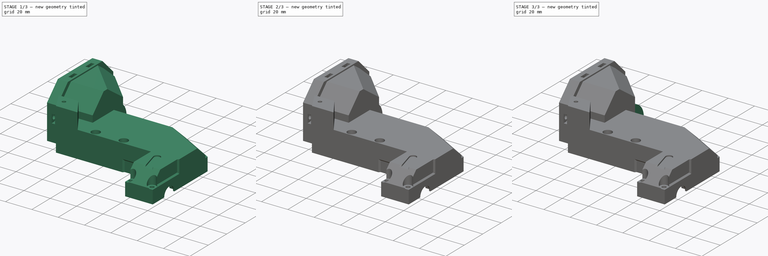
[diagram: build sequence overview — one tinted view per stage of 3, left to right]
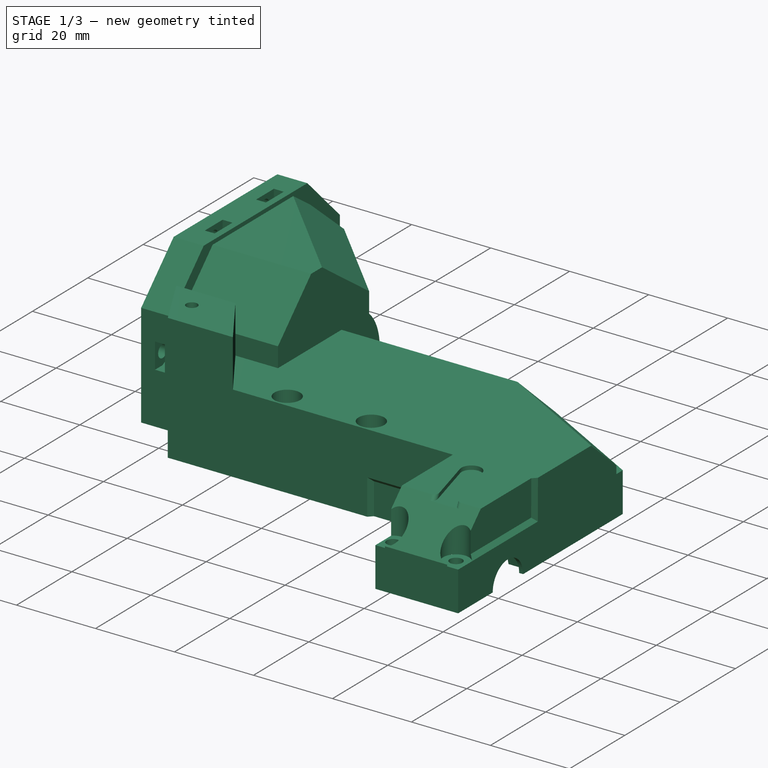
[diagram: stage 1 of 3 — iso view after this stage's code; geometry added in this stage tinted green]
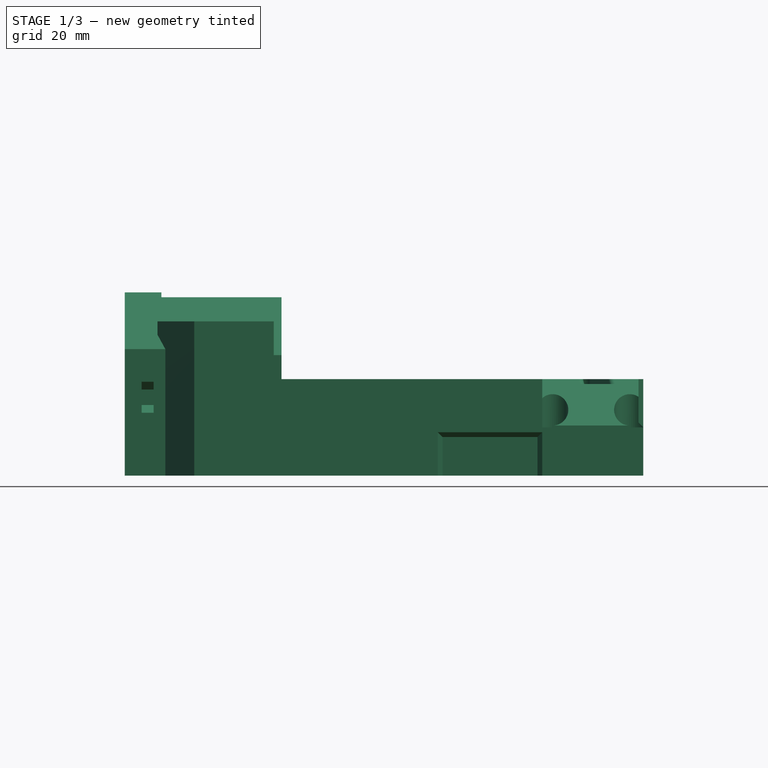
[diagram: stage 1 of 3 — front view after this stage's code; geometry added in this stage tinted green]
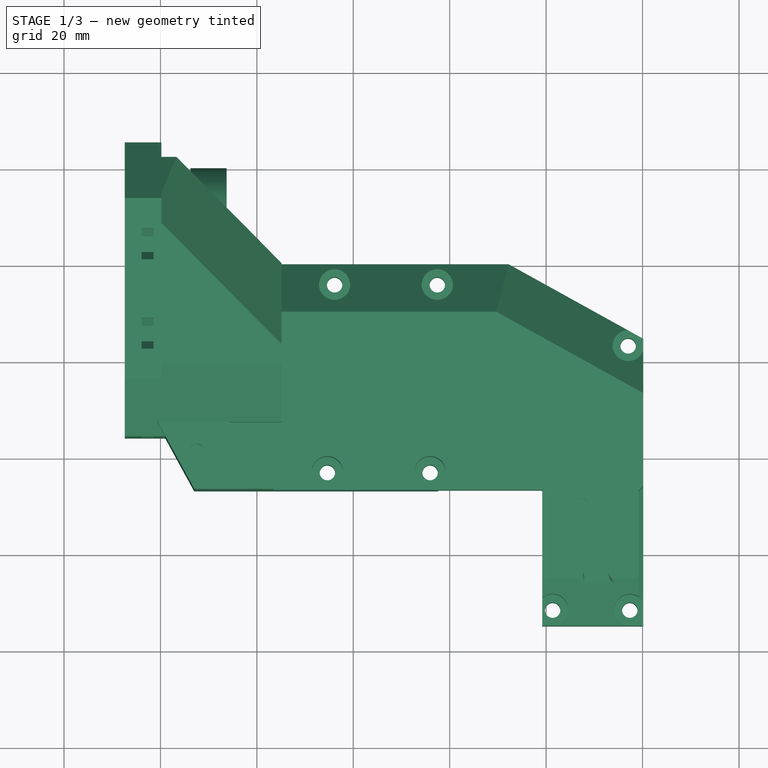
[diagram: stage 1 of 3 — top view after this stage's code; geometry added in this stage tinted green]
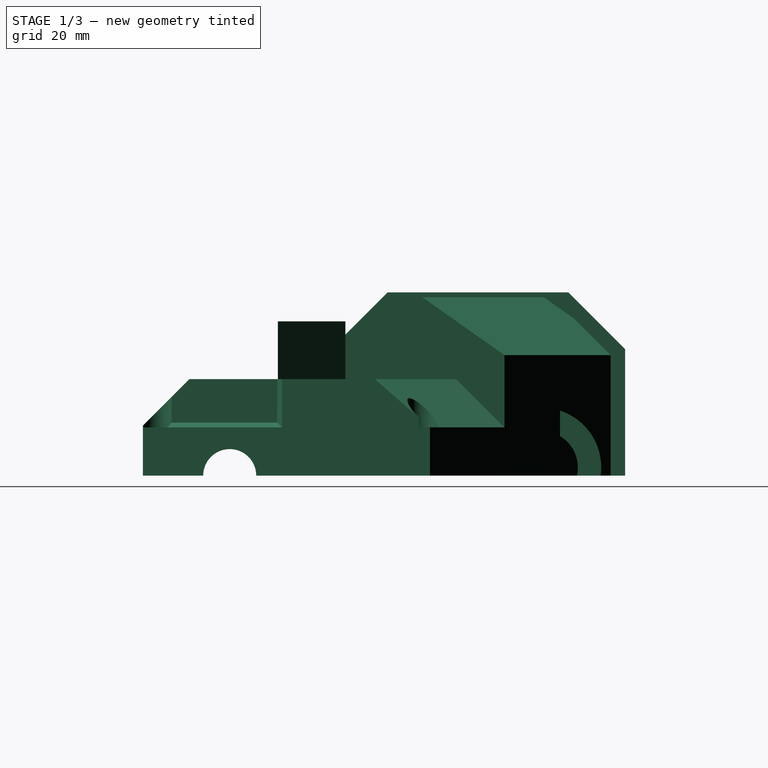
[diagram: stage 1 of 3 — right view after this stage's code; geometry added in this stage tinted green]
FCSTD DOCUMENT  (FreeCAD 0.20R29177 (Git))
Label: housingLeftBrushless
License: All rights reserved
LicenseURL: http://en.wikipedia.org/wiki/All_rights_reserved
objects: Sketcher::SketchObject×4, PartDesign::Pad×3, Part::Feature×1, PartDesign::FeatureBase×1, Spreadsheet::Sheet×1, PartDesign::Pocket×1, PartDesign::Body×1
note: 15 computed .brp shape members not serialized (recipe doc carries the construction recipe); baked Part::Feature solids carry a one-line shape summary decoded from their .brp

FEATURE [Part::Feature] Gearbox_Housing___left001001_solid  label="Gearbox_Housing___left001001 (Solid)"
  shape: bbox 107.6 x 100 x 38 mm, 2795 faces (baked)
FEATURE [PartDesign::FeatureBase] BaseFeature
  BaseFeature = -> Gearbox_Housing___left001001_solid
  Placement = pos=(0,-160.925,-45.9071) rot=(0,0,1;0rad)
FEATURE [Sketcher::SketchObject] Sketch
  ExternalGeometry = -> [BaseFeature]
  FullyConstrained = false
  MapMode = 5
  Placement = pos=(73.7291,-160.925,-45.9071) rot=(0.57735,-0.57735,-0.57735;2.0944rad)
  Support = -> [BaseFeature]
  expr: Constraints[1] = Spreadsheet.newSocketY
  expr: Constraints[2] = Spreadsheet.newSocketX
  expr: Constraints[4] = Spreadsheet.socketWallR
  sketch-geometry (5):
    g0: ArcOfCircle CenterX=-168.8 CenterY=1.7 CenterZ=0 NormalX=0 NormalY=0 NormalZ=1 AngleXU=0 Radius=7.55 StartAngle=6.05607 EndAngle=9.65189
    g1: ArcOfCircle CenterX=-168.8 CenterY=1.7 CenterZ=0 NormalX=0 NormalY=0 NormalZ=1 AngleXU=0 Radius=12.4 StartAngle=0.322638 EndAngle=3.27912
    g2: ArcOfCircle CenterX=-143.82 CenterY=-7.31 CenterZ=0 NormalX=0 NormalY=0 NormalZ=1 AngleXU=0 Radius=18.5 StartAngle=2.36683 EndAngle=2.73538
    g3: LineSegment StartX=-160.814 StartY=6.2e-15 StartZ=0 EndX=-161.444 EndY=-2.9e-15 EndZ=0
    g4: LineSegment StartX=-176.156 StartY=8.2e-15 StartZ=0 EndX=-181.083 EndY=4.2e-15 EndZ=0
  constraints (14):
    c: Radius(g0) = 7.55
    c: DistanceY(g0,g-3) = 36.3
    c: DistanceX(g0,g-4) = 43.65
    c: Coincident(g1,g0)
    c: Radius(g1) = 12.4
    c: Radius(g2) = 18.5
    c: DistanceX(g2,g-4) = 18.67
    c: DistanceY(g2,g-3) = 45.31
    c: Coincident(g2,g1)
    c: Coincident(g2,g3)
    c: PointOnObject(g1,g3)
    c: Coincident(g3,g0)
    c: Coincident(g4,g0)
    c: PointOnObject(g4,g1)
FEATURE [Spreadsheet::Sheet] Spreadsheet
  cells = A2=newSocketY; B2(newSocketY)=36.3; A3=newSocketX; B3(newSocketX)=43.65; A4=engineHoleX; B4(engineHoleX)=18.67; A5=engineHoleY; B5(engineHoleY)=45.31; A6=socketR; B6(socketR)=7.55; C6=R of hole to contain entire socket; A7=socketWallR; B7(socketWallR)=12.4; A8=socketHeight; B8(socketHeight)=7.5
FEATURE [PartDesign::Pad] Pad002  label="PadSocket"
  BaseFeature = -> BaseFeature
  Direction = (-1,0,0)
  Length = 7.5
  Length2 = 10
  Placement = pos=(0,-160.925,-45.9071) rot=(0,0,1;0rad)
  Profile = -> Sketch
  ReferenceAxis = -> Sketch [N_Axis]
  Type = 0
  expr: Length = Spreadsheet.socketHeight
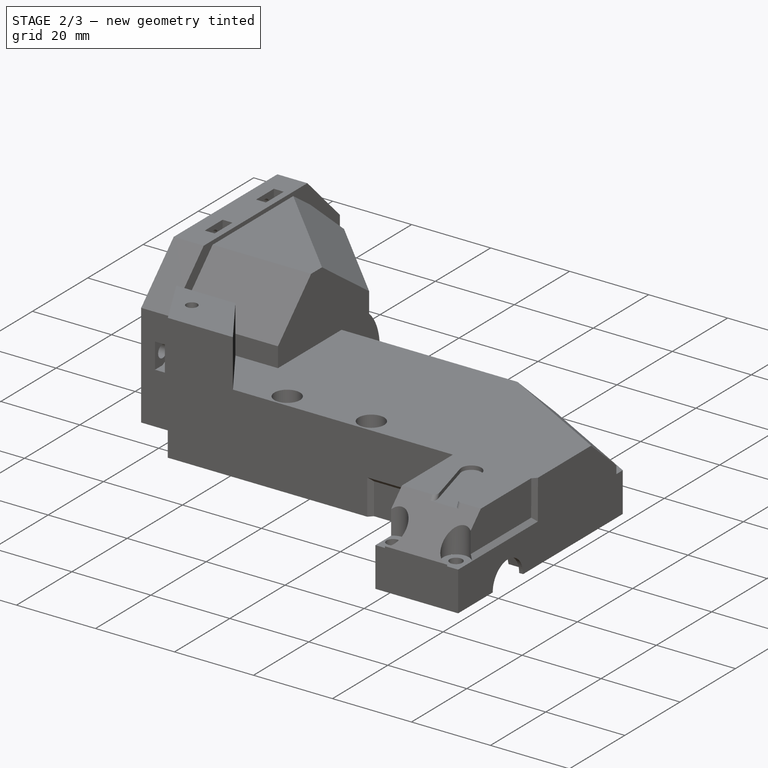
[diagram: stage 2 of 3 — iso view after this stage's code; geometry added in this stage tinted green]
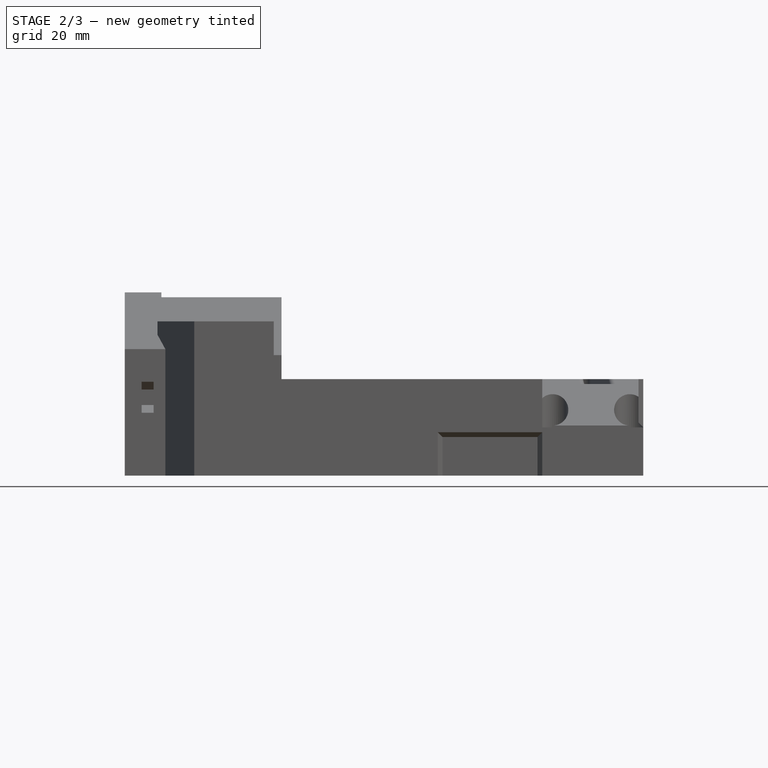
[diagram: stage 2 of 3 — front view after this stage's code; geometry added in this stage tinted green]
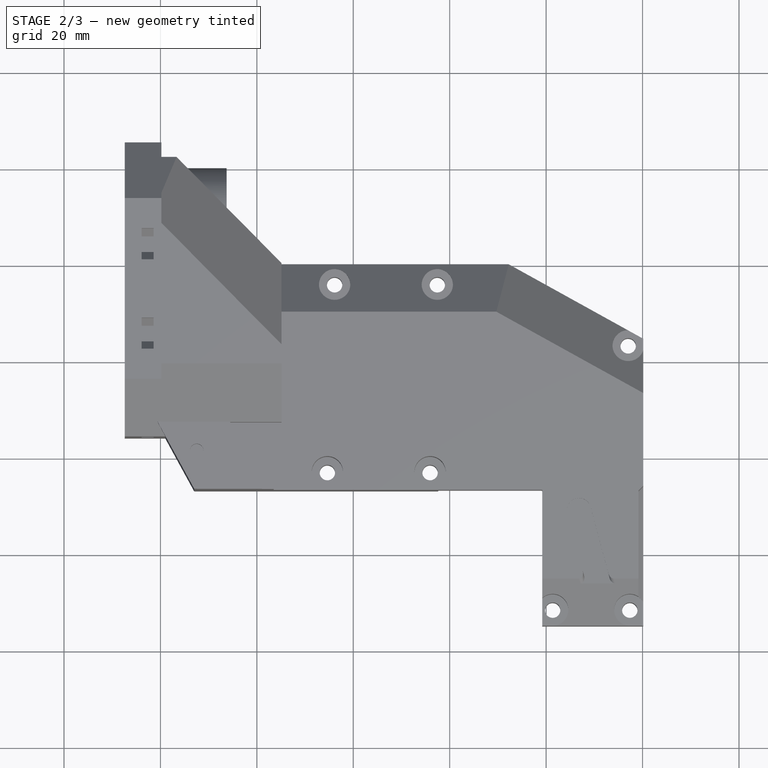
[diagram: stage 2 of 3 — top view after this stage's code; geometry added in this stage tinted green]
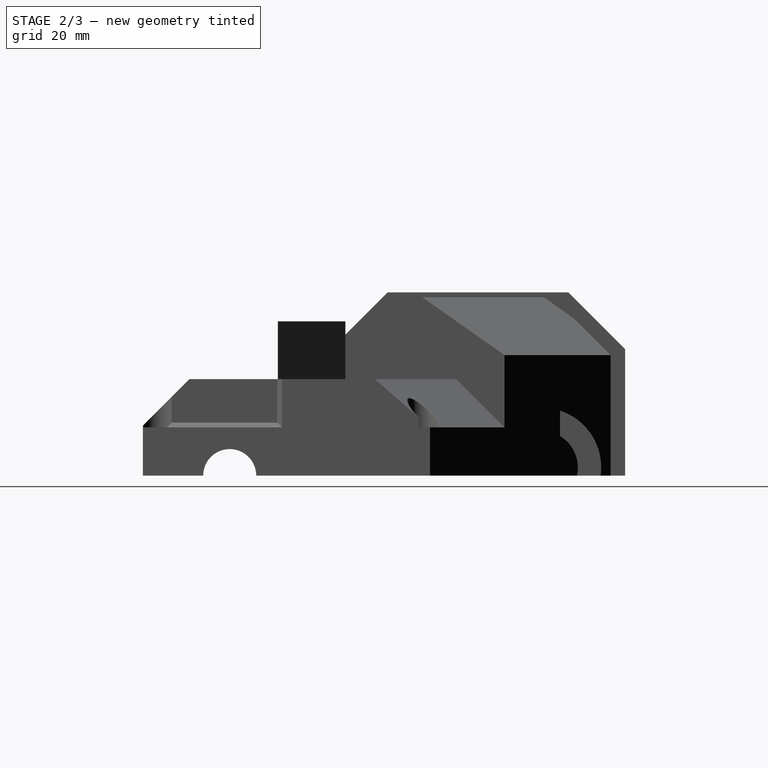
[diagram: stage 2 of 3 — right view after this stage's code; geometry added in this stage tinted green]
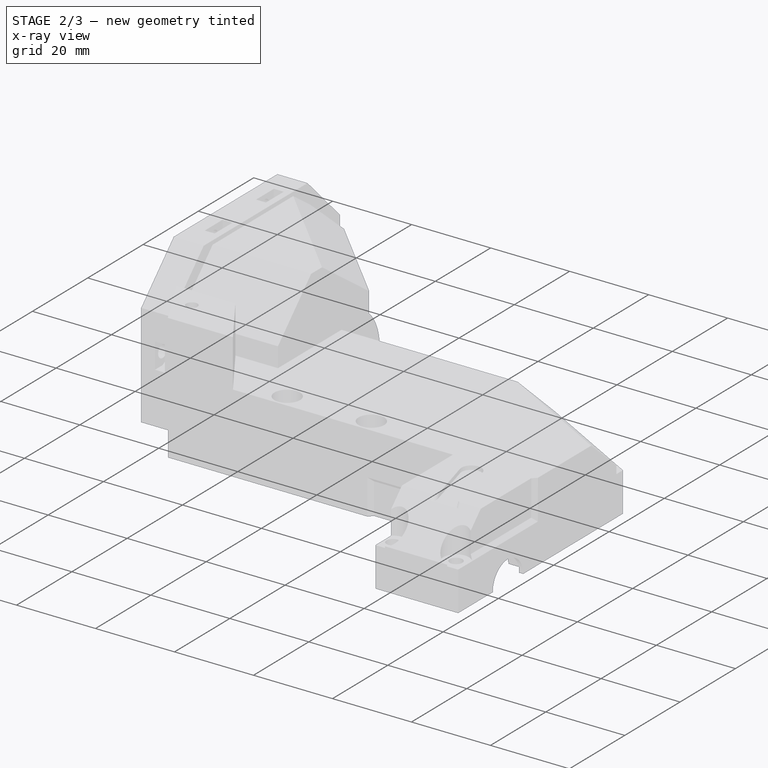
[diagram: stage 2 of 3 — x-ray composite at the iso view; earlier geometry ghosted, this stage's added geometry solid]
FEATURE [Sketcher::SketchObject] Sketch005  label="SketchSmallGap001"
  ExternalGeometry = -> [Pad002]
  FullyConstrained = true
  MapMode = 5
  Placement = pos=(66.2291,-160.925,-45.9071) rot=(0.57735,-0.57735,-0.57735;2.0944rad)
  Support = -> [Pad002]
  expr: Constraints[0] = Spreadsheet.socketWallR
  expr: Constraints[1] = Spreadsheet.newSocketY
  sketch-geometry (3):
    g0: ArcOfCircle CenterX=-168.8 CenterY=1.7 CenterZ=0 NormalX=0 NormalY=0 NormalZ=1 AngleXU=0 Radius=12.4 StartAngle=2.74614 EndAngle=3.27912
    g1: LineSegment StartX=-180.243 StartY=6.47685 StartZ=0 EndX=-180.243 EndY=1.8e-15 EndZ=0
    g2: LineSegment StartX=-180.243 StartY=2e-15 StartZ=0 EndX=-181.083 EndY=2e-15 EndZ=0
  constraints (8):
    c: Radius(g0) = 12.4
    c: DistanceY(g0,g-4) = 36.3
    c: Coincident(g1,g-3)
    c: Coincident(g1,g-3)
    c: Coincident(g2,g1)
    c: Horizontal(g2)
    c: Coincident(g0,g2)
    c: Coincident(g0,g1)
FEATURE [PartDesign::Pad] Pad003  label="PadSmallGap"
  BaseFeature = -> Pad002
  Direction = (-1,0,0)
  Length = 10
  Length2 = 10
  Placement = pos=(0,-160.925,-45.9071) rot=(0,0,1;0rad)
  Profile = -> Sketch005
  ReferenceAxis = -> Sketch005 [N_Axis]
  Type = 1
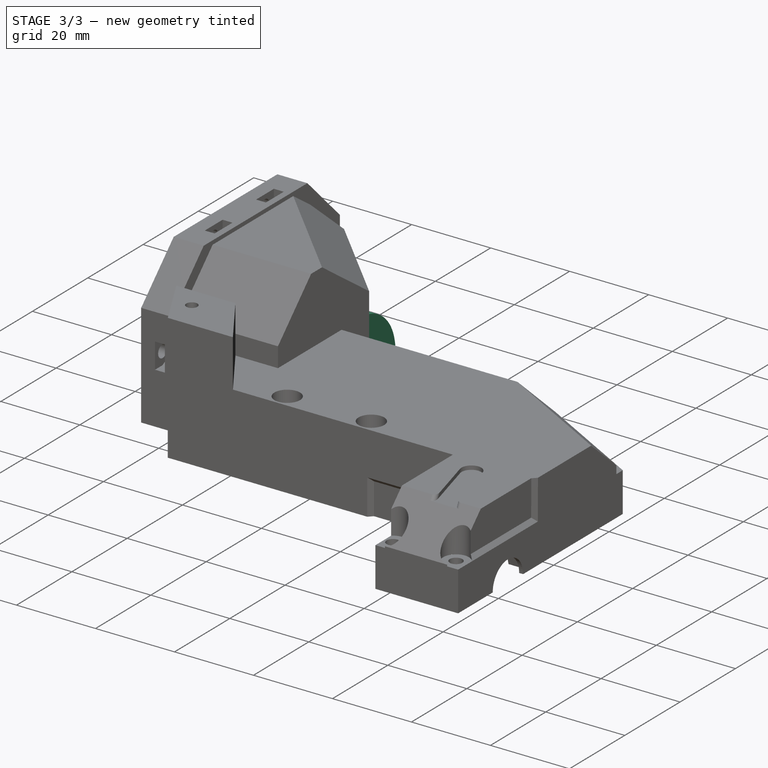
[diagram: stage 3 of 3 — iso view after this stage's code; geometry added in this stage tinted green]
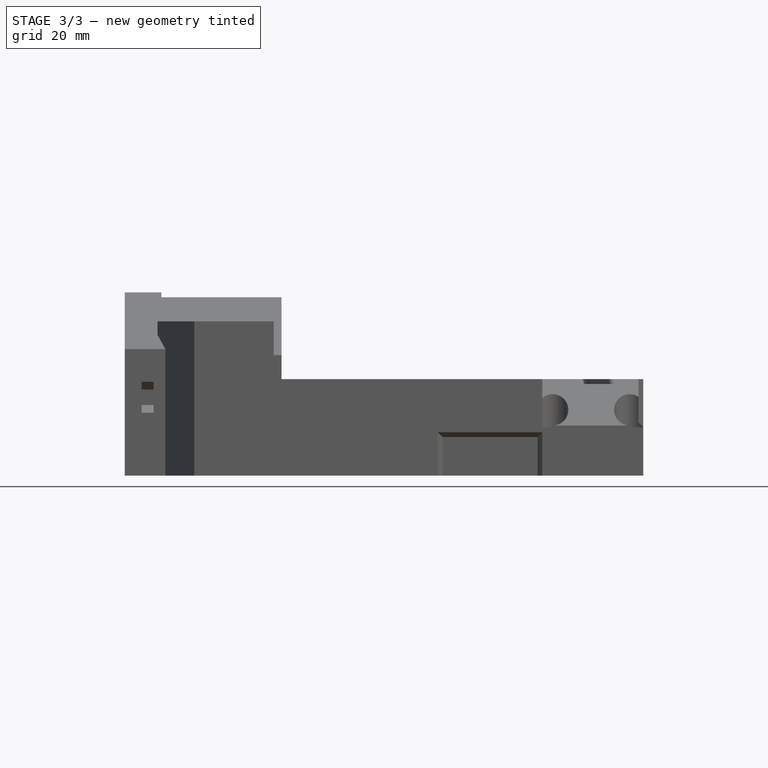
[diagram: stage 3 of 3 — front view after this stage's code; geometry added in this stage tinted green]
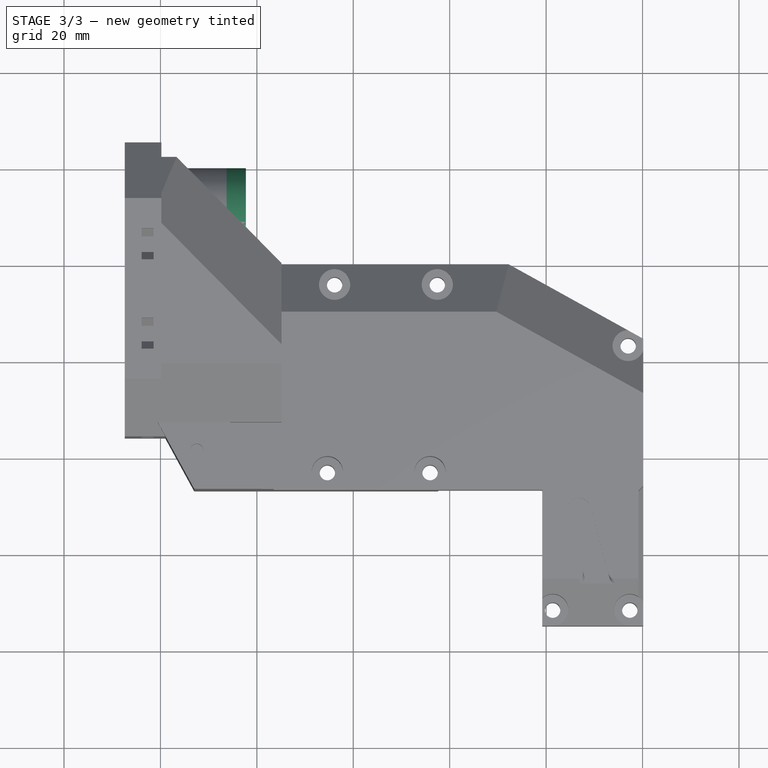
[diagram: stage 3 of 3 — top view after this stage's code; geometry added in this stage tinted green]
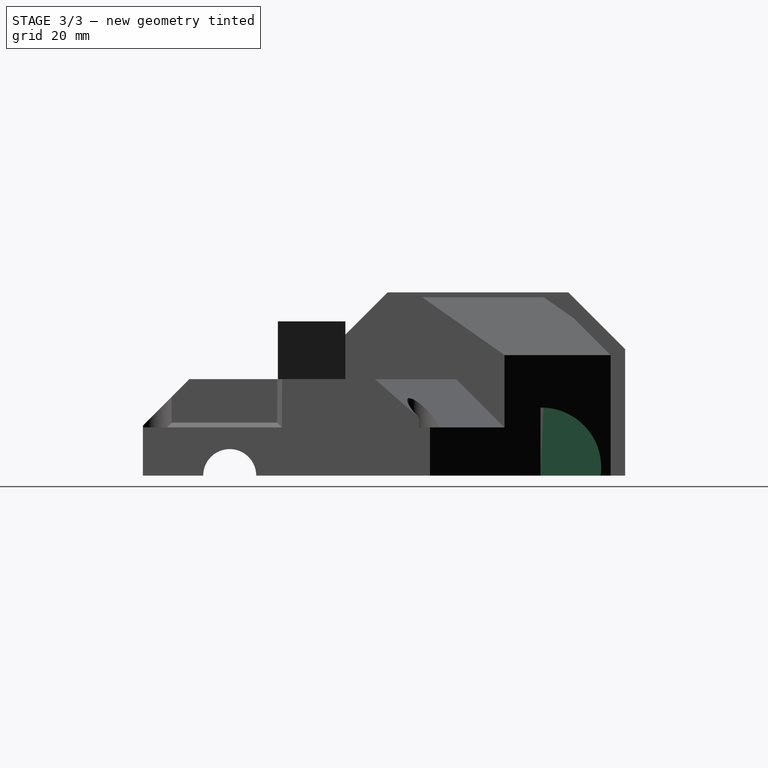
[diagram: stage 3 of 3 — right view after this stage's code; geometry added in this stage tinted green]
FEATURE [Sketcher::SketchObject] Sketch006  label="SketchSocketHole"
  ExternalGeometry = -> [Pad003]
  FullyConstrained = true
  MapMode = 5
  Placement = pos=(73.7291,-160.925,-45.9071) rot=(0.57735,-0.57735,-0.57735;2.0944rad)
  Support = -> [Pad003]
  expr: Constraints[0] = Spreadsheet.socketR
  expr: Constraints[1] = Spreadsheet.newSocketX
  expr: Constraints[2] = Spreadsheet.newSocketY
  sketch-geometry (1):
    g0: Circle CenterX=-168.8 CenterY=1.7 CenterZ=0 NormalX=0 NormalY=0 NormalZ=1 AngleXU=0 Radius=7.55
  constraints (3):
    c: Radius(g0) = 7.55
    c: DistanceX(g0,g-4) = 43.65
    c: DistanceY(g0,g-3) = 36.3
FEATURE [PartDesign::Pocket] Pocket001  label="PocketSocktHole"
  BaseFeature = -> Pad003
  Direction = (1,0,0)
  Length = 10
  Length2 = 5
  Placement = pos=(0,-160.925,-45.9071) rot=(0,0,1;0rad)
  Profile = -> Sketch006
  ReferenceAxis = -> Sketch006 [N_Axis]
  Reversed = true
  Type = 0
FEATURE [Sketcher::SketchObject] Sketch007
  ExternalGeometry = -> [Pocket001]
  FullyConstrained = false
  MapMode = 5
  Placement = pos=(73.7291,-160.925,-45.9071) rot=(0.57735,0.57735,0.57735;2.0944rad)
  Support = -> [Pocket001]
  expr: Constraints[0] = Spreadsheet.socketWallR
  expr: Constraints[1] = Spreadsheet.newSocketY
  sketch-geometry (3):
    g0: ArcOfCircle CenterX=168.8 CenterY=1.7 CenterZ=0 NormalX=0 NormalY=0 NormalZ=1 AngleXU=0 Radius=12.4 StartAngle=6.14566 EndAngle=7.88687
    g1: LineSegment StartX=168.392 StartY=14.0933 StartZ=0 EndX=168.392 EndY=7.1e-15 EndZ=0
    g2: LineSegment StartX=181.083 StartY=7.1e-15 StartZ=0 EndX=168.392 EndY=7.1e-15 EndZ=0
  constraints (8):
    c: Radius(g0) = 12.4
    c: DistanceY(g0,g-3) = 36.3
    c: Vertical(g1)
    c: Coincident(g2,g-6)
    c: Horizontal(g2)
    c: Coincident(g1,g2)
    c: Coincident(g0,g-5)
    c: Coincident(g1,g0)
FEATURE [PartDesign::Pad] Pad004
  BaseFeature = -> Pocket001
  Direction = (1,0,0)
  Length = 4
  Length2 = 10
  Placement = pos=(0,-160.925,-45.9071) rot=(0,0,1;0rad)
  Profile = -> Sketch007
  ReferenceAxis = -> Sketch007 [N_Axis]
  Type = 0
FEATURE [PartDesign::Body] Body
  BaseFeature = -> Gearbox_Housing___left001001_solid
  Group = -> [BaseFeature,Sketch,Pad002,Sketch005,Pad003,Sketch006,Pocket001,Sketch007,Pad004]
  Origin = -> Origin
  Tip = -> Pad004
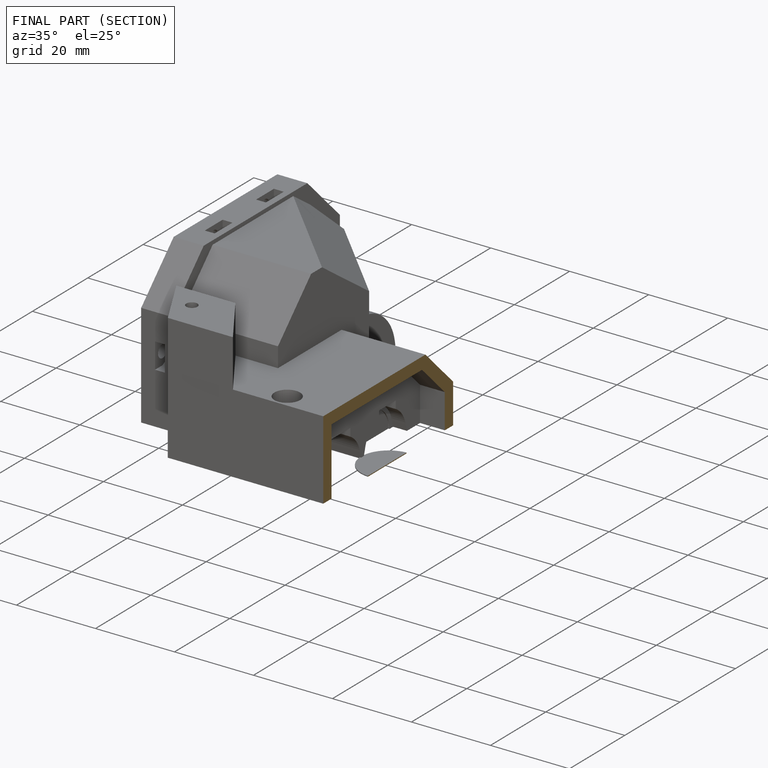
[diagram: finished part — half-section view (interior)]
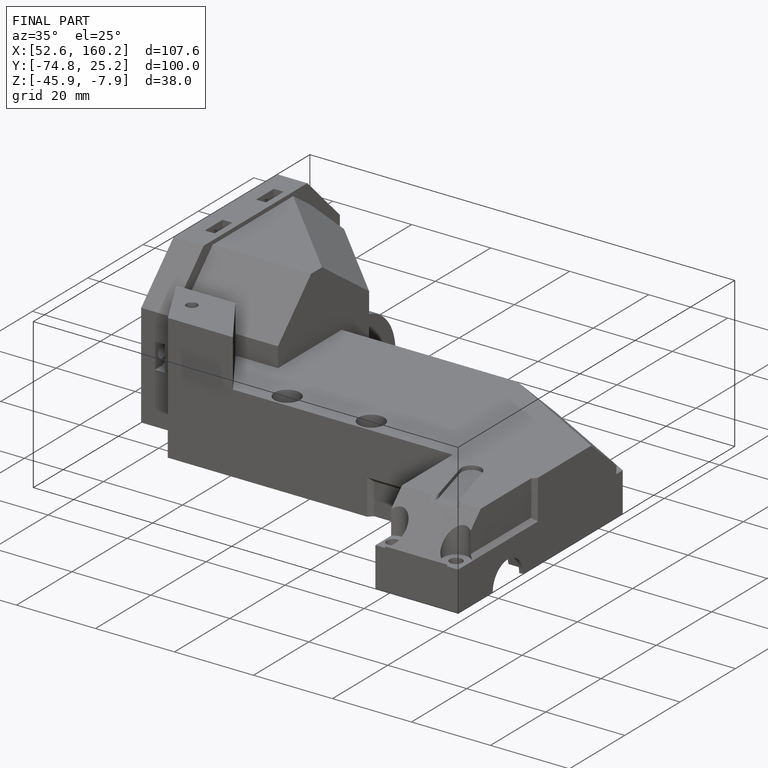
[diagram: finished part — iso view with bounding-box wireframe]
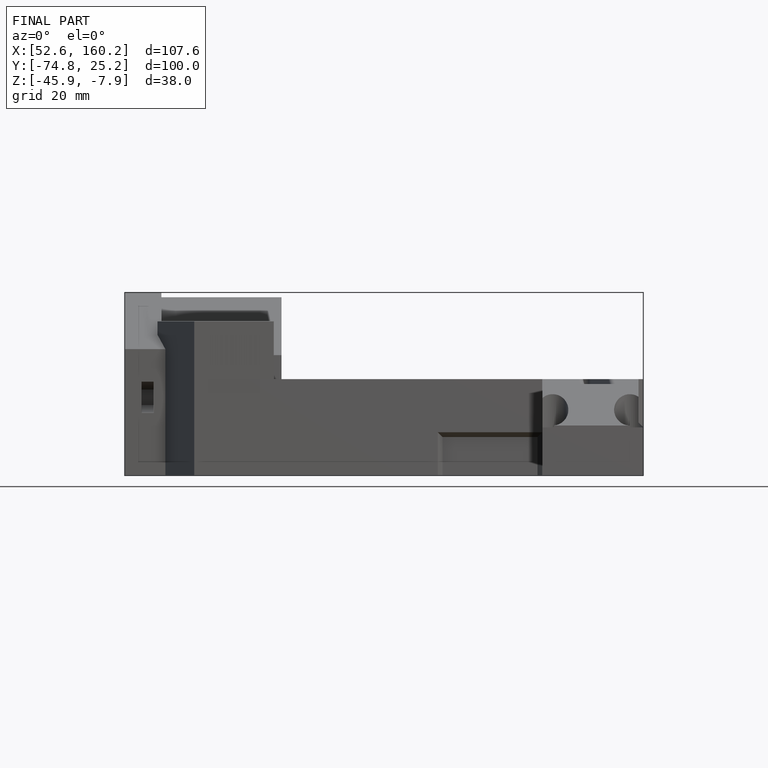
[diagram: finished part — front view with bounding-box wireframe]
